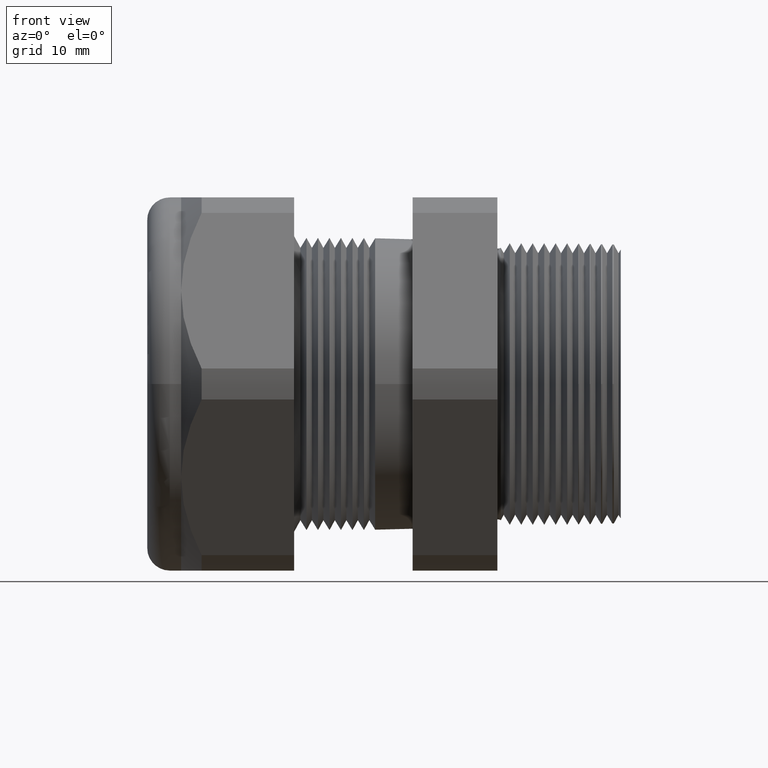
[diagram: clean part render]
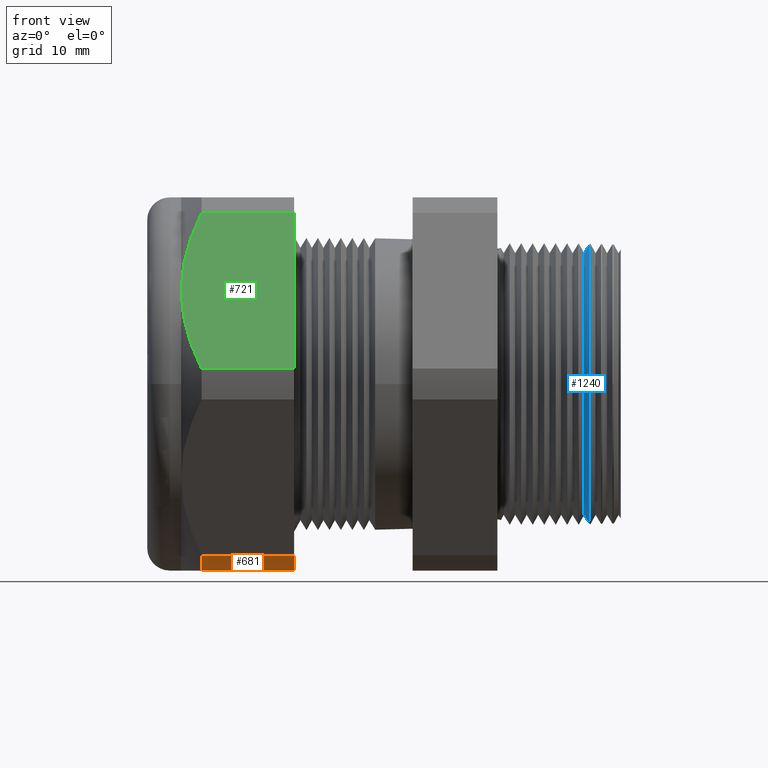
[diagram: same view with three faces highlighted in distinct colors, each labeled with its STEP entity id]
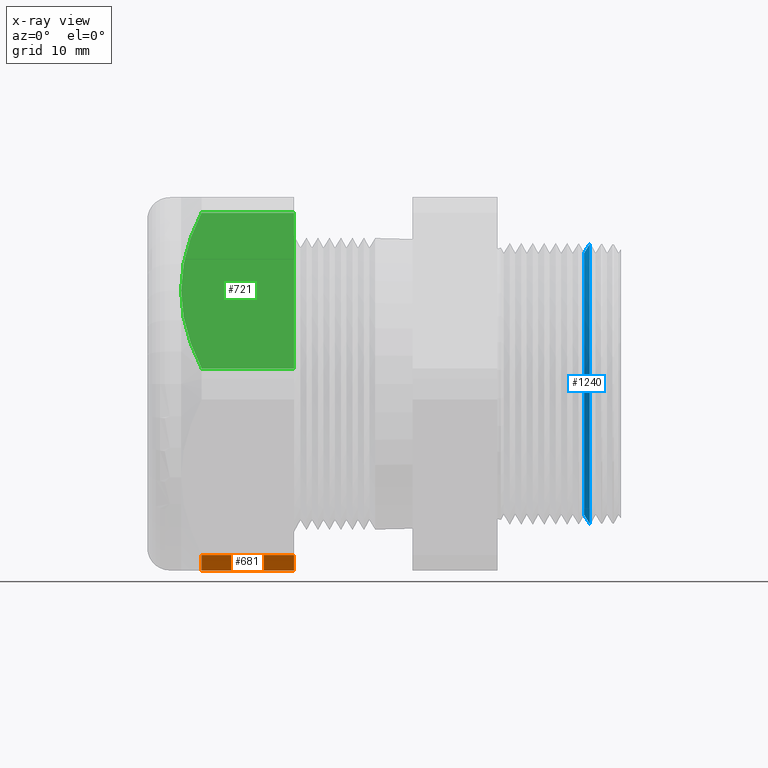
[diagram: x-ray of the same camera — body ghosted, the three highlighted faces saturated]
A machine part, front view with three faces highlighted in distinct colors.
The next image is the same camera in x-ray (body ghosted, the three faces saturated) — at least one of them is partly hidden behind the body in this view.
Their STEP definitions:

[orange] entity #681 — the highlighted cylindrical surface (partial cylindrical patch) has radius 18.3261 mm, axis along (-1, -0, -0).
#681 = ADVANCED_FACE ( 'NONE', ( #2794 ), #2793, .T. ) ;
#682 = EDGE_LOOP ( 'NONE', ( #683, #687, #746, #747 ) ) ;
#683 = ORIENTED_EDGE ( 'NONE', *, *, #684, .T. ) ;
#684 = EDGE_CURVE ( 'NONE', #685, #686, #2788, .T. ) ;
#685 = VERTEX_POINT ( 'NONE', #2784 ) ;
#686 = VERTEX_POINT ( 'NONE', #2783 ) ;
#687 = ORIENTED_EDGE ( 'NONE', *, *, #688, .T. ) ;
#688 = EDGE_CURVE ( 'NONE', #686, #700, #2781, .T. ) ;
#698 = EDGE_CURVE ( 'NONE', #699, #700, #2821, .T. ) ;
#699 = VERTEX_POINT ( 'NONE', #2817 ) ;
#700 = VERTEX_POINT ( 'NONE', #2816 ) ;
#746 = ORIENTED_EDGE ( 'NONE', *, *, #698, .F. ) ;
#747 = ORIENTED_EDGE ( 'NONE', *, *, #748, .F. ) ;
#748 = EDGE_CURVE ( 'NONE', #685, #699, #2893, .T. ) ;
#2777 = DIRECTION ( 'NONE',  ( 0.0000000000000000000, 0.0000000000000000000, -1.000000000000000000 ) ) ;
#2778 = DIRECTION ( 'NONE',  ( 1.000000000000000000, 0.0000000000000000000, 0.0000000000000000000 ) ) ;
#2779 = CARTESIAN_POINT ( 'NONE',  ( -1.340389763779527500, 5.293217369441609100E-017, 0.0000000000000000000 ) ) ;
#2780 = AXIS2_PLACEMENT_3D ( 'NONE', #2779, #2778, #2777 ) ;
#2781 = CIRCLE ( 'NONE', #2780, 0.7215000000000000300 ) ;
#2783 = CARTESIAN_POINT ( 'NONE',  ( -1.340389763779527500, -0.4063420493440883000, -0.5961949252843792300 ) ) ;
#2784 = CARTESIAN_POINT ( 'NONE',  ( -1.018188976377952400, -0.4063420493440883000, -0.5961949252843792300 ) ) ;
#2785 = DIRECTION ( 'NONE',  ( -1.000000000000000000, -0.0000000000000000000, -0.0000000000000000000 ) ) ;
#2786 = VECTOR ( 'NONE', #2785, 39.37007874015748100 ) ;
#2787 = CARTESIAN_POINT ( 'NONE',  ( 0.1200000000000000900, -0.4063420493440883000, -0.5961949252843792300 ) ) ;
#2788 = LINE ( 'NONE', #2787, #2786 ) ;
#2789 = DIRECTION ( 'NONE',  ( 0.0000000000000000000, 0.0000000000000000000, 1.000000000000000000 ) ) ;
#2790 = DIRECTION ( 'NONE',  ( -1.000000000000000000, -0.0000000000000000000, -0.0000000000000000000 ) ) ;
#2791 = CARTESIAN_POINT ( 'NONE',  ( 0.1200000000000000900, 5.293217369441609100E-017, 0.0000000000000000000 ) ) ;
#2792 = AXIS2_PLACEMENT_3D ( 'NONE', #2791, #2790, #2789 ) ;
#2793 = CYLINDRICAL_SURFACE ( 'NONE', #2792, 0.7215000000000000300 ) ;
#2794 = FACE_OUTER_BOUND ( 'NONE', #682, .T. ) ;
#2816 = CARTESIAN_POINT ( 'NONE',  ( -1.340389763779527500, -0.3131489262315936800, -0.6500000000000000200 ) ) ;
#2817 = CARTESIAN_POINT ( 'NONE',  ( -1.018188976377952400, -0.3131489262315936800, -0.6500000000000000200 ) ) ;
#2818 = DIRECTION ( 'NONE',  ( -1.000000000000000000, -0.0000000000000000000, -0.0000000000000000000 ) ) ;
#2819 = VECTOR ( 'NONE', #2818, 39.37007874015748100 ) ;
#2820 = CARTESIAN_POINT ( 'NONE',  ( 0.1200000000000000900, -0.3131489262315936800, -0.6500000000000000200 ) ) ;
#2821 = LINE ( 'NONE', #2820, #2819 ) ;
#2889 = DIRECTION ( 'NONE',  ( 0.0000000000000000000, 1.000000000000000000, 0.0000000000000000000 ) ) ;
#2890 = DIRECTION ( 'NONE',  ( 1.000000000000000000, -3.749030204222210100E-017, -0.0000000000000000000 ) ) ;
#2891 = CARTESIAN_POINT ( 'NONE',  ( -1.018188976377952400, 5.293217369441609100E-017, 0.0000000000000000000 ) ) ;
#2892 = AXIS2_PLACEMENT_3D ( 'NONE', #2891, #2890, #2889 ) ;
#2893 = CIRCLE ( 'NONE', #2892, 0.7215000000000000300 ) ;

[blue] entity #1240 — the highlighted conical surface has half-angle 58.5 deg.
#473 = EDGE_CURVE ( 'NONE', #537, #474, #2395, .T. ) ;
#474 = VERTEX_POINT ( 'NONE', #2387 ) ;
#535 = EDGE_CURVE ( 'NONE', #538, #536, #2468, .T. ) ;
#536 = VERTEX_POINT ( 'NONE', #2464 ) ;
#537 = VERTEX_POINT ( 'NONE', #2463 ) ;
#538 = VERTEX_POINT ( 'NONE', #2462 ) ;
#622 = EDGE_CURVE ( 'NONE', #623, #536, #2673, .T. ) ;
#623 = VERTEX_POINT ( 'NONE', #2668 ) ;
#807 = EDGE_CURVE ( 'NONE', #474, #623, #3010, .T. ) ;
#1236 = EDGE_CURVE ( 'NONE', #538, #537, #3758, .T. ) ;
#1240 = ADVANCED_FACE ( 'NONE', ( #3754 ), #3753, .T. ) ;
#1241 = EDGE_LOOP ( 'NONE', ( #1242, #1243, #1244, #1245, #1246 ) ) ;
#1242 = ORIENTED_EDGE ( 'NONE', *, *, #535, .F. ) ;
#1243 = ORIENTED_EDGE ( 'NONE', *, *, #1236, .T. ) ;
#1244 = ORIENTED_EDGE ( 'NONE', *, *, #473, .T. ) ;
#1245 = ORIENTED_EDGE ( 'NONE', *, *, #807, .T. ) ;
#1246 = ORIENTED_EDGE ( 'NONE', *, *, #622, .T. ) ;
#2387 = CARTESIAN_POINT ( 'NONE',  ( 0.01175006393987942400, -1.049728457182218100E-017, -0.4880300970691989200 ) ) ;
#2388 = DIRECTION ( 'NONE',  ( 0.5224985647159473600, 0.0000000000000000000, -0.8526401643540930700 ) ) ;
#2389 = VECTOR ( 'NONE', #2388, 39.37007874015748100 ) ;
#2390 = CARTESIAN_POINT ( 'NONE',  ( -0.007960980905434294700, -1.049728457182218900E-017, -0.4558645952833023700 ) ) ;
#2395 = LINE ( 'NONE', #2390, #2389 ) ;
#2462 = CARTESIAN_POINT ( 'NONE',  ( -0.007960980905434294700, -1.049728457182218900E-017, 0.4558645952833023700 ) ) ;
#2463 = CARTESIAN_POINT ( 'NONE',  ( -0.007960980905434294700, 4.736006394875138000E-017, -0.4558645952833023700 ) ) ;
#2464 = CARTESIAN_POINT ( 'NONE',  ( 0.01175006393987942400, 4.926916505451445500E-017, 0.4880300970691989200 ) ) ;
#2465 = DIRECTION ( 'NONE',  ( 0.5224985647159473600, 1.044183048100713300E-016, 0.8526401643540930700 ) ) ;
#2466 = VECTOR ( 'NONE', #2465, 39.37007874015748100 ) ;
#2467 = CARTESIAN_POINT ( 'NONE',  ( -0.007960980905434294700, 4.533002717400780000E-017, 0.4558645952833023700 ) ) ;
#2468 = LINE ( 'NONE', #2467, #2466 ) ;
#2668 = CARTESIAN_POINT ( 'NONE',  ( 0.01175006393987942400, -0.4880300970692013100, 0.0000000000000000000 ) ) ;
#2669 = DIRECTION ( 'NONE',  ( 0.0000000000000000000, 0.0000000000000000000, -1.000000000000000000 ) ) ;
#2670 = DIRECTION ( 'NONE',  ( -1.000000000000000000, 0.0000000000000000000, 0.0000000000000000000 ) ) ;
#2671 = CARTESIAN_POINT ( 'NONE',  ( 0.01175006393987942400, -1.707062891447383500E-016, 0.0000000000000000000 ) ) ;
#2672 = AXIS2_PLACEMENT_3D ( 'NONE', #2671, #2670, #2669 ) ;
#2673 = CIRCLE ( 'NONE', #2672, 0.4880300970692010900 ) ;
#3010 = CIRCLE ( 'NONE', #3073, 0.4880300970692010900 ) ;
#3070 = DIRECTION ( 'NONE',  ( 0.0000000000000000000, 0.0000000000000000000, -1.000000000000000000 ) ) ;
#3071 = DIRECTION ( 'NONE',  ( -1.000000000000000000, 0.0000000000000000000, 0.0000000000000000000 ) ) ;
#3072 = CARTESIAN_POINT ( 'NONE',  ( 0.01175006393987942400, -1.707062891447383500E-016, 0.0000000000000000000 ) ) ;
#3073 = AXIS2_PLACEMENT_3D ( 'NONE', #3072, #3071, #3070 ) ;
#3696 = CARTESIAN_POINT ( 'NONE',  ( -0.007960980905434294700, -1.049728457182218900E-017, 0.0000000000000000000 ) ) ;
#3748 = DIRECTION ( 'NONE',  ( 0.0000000000000000000, 0.0000000000000000000, -1.000000000000000000 ) ) ;
#3749 = DIRECTION ( 'NONE',  ( 1.000000000000000000, -0.0000000000000000000, -0.0000000000000000000 ) ) ;
#3750 = CARTESIAN_POINT ( 'NONE',  ( -0.007960980905434294700, -1.049728457182218900E-017, 0.0000000000000000000 ) ) ;
#3751 = AXIS2_PLACEMENT_3D ( 'NONE', #3750, #3749, #3748 ) ;
#3753 = CONICAL_SURFACE ( 'NONE', #3751, 0.4558645952833023700, 1.021017612416684500 ) ;
#3754 = FACE_OUTER_BOUND ( 'NONE', #1241, .T. ) ;
#3755 = DIRECTION ( 'NONE',  ( 0.0000000000000000000, 0.0000000000000000000, -1.000000000000000000 ) ) ;
#3756 = DIRECTION ( 'NONE',  ( 1.000000000000000000, -0.0000000000000000000, -0.0000000000000000000 ) ) ;
#3757 = AXIS2_PLACEMENT_3D ( 'NONE', #3696, #3756, #3755 ) ;
#3758 = CIRCLE ( 'NONE', #3757, 0.4558645952833023700 ) ;

[green] entity #721 — the highlighted planar face has unit normal (0, -0.866, 0.5).
#333 = VERTEX_POINT ( 'NONE', #2111 ) ;
#721 = ADVANCED_FACE ( 'NONE', ( #2882 ), #2881, .T. ) ;
#722 = EDGE_LOOP ( 'NONE', ( #723, #727, #729, #731, #732 ) ) ;
#723 = ORIENTED_EDGE ( 'NONE', *, *, #724, .T. ) ;
#724 = EDGE_CURVE ( 'NONE', #725, #726, #2879, .T. ) ;
#725 = VERTEX_POINT ( 'NONE', #2872 ) ;
#726 = VERTEX_POINT ( 'NONE', #2871 ) ;
#727 = ORIENTED_EDGE ( 'NONE', *, *, #728, .T. ) ;
#728 = EDGE_CURVE ( 'NONE', #726, #333, #2870, .T. ) ;
#729 = ORIENTED_EDGE ( 'NONE', *, *, #730, .T. ) ;
#730 = EDGE_CURVE ( 'NONE', #333, #741, #2869, .T. ) ;
#731 = ORIENTED_EDGE ( 'NONE', *, *, #739, .F. ) ;
#732 = ORIENTED_EDGE ( 'NONE', *, *, #786, .F. ) ;
#739 = EDGE_CURVE ( 'NONE', #740, #741, #2904, .T. ) ;
#740 = VERTEX_POINT ( 'NONE', #2900 ) ;
#741 = VERTEX_POINT ( 'NONE', #2899 ) ;
#786 = EDGE_CURVE ( 'NONE', #725, #740, #2983, .T. ) ;
#2111 = CARTESIAN_POINT ( 'NONE',  ( -1.411889763779527400, -0.5629165124598851700, 0.3249999999999999000 ) ) ;
#2859 = CARTESIAN_POINT ( 'NONE',  ( -1.411889763779527400, -0.5629165124598851700, 0.3249999999999999000 ) ) ;
#2860 = CARTESIAN_POINT ( 'NONE',  ( -1.411889763779527400, -0.5561389602113051600, 0.3367390648454929900 ) ) ;
#2861 = CARTESIAN_POINT ( 'NONE',  ( -1.411460853679630300, -0.5492994181763345400, 0.3485854991505651400 ) ) ;
#2862 = CARTESIAN_POINT ( 'NONE',  ( -1.409757307482530700, -0.5357104722797960700, 0.3721222438646745200 ) ) ;
#2863 = CARTESIAN_POINT ( 'NONE',  ( -1.408488242340942200, -0.5289679975772969600, 0.3838005526181507700 ) ) ;
#2864 = CARTESIAN_POINT ( 'NONE',  ( -1.403504729739888200, -0.5088871528993770300, 0.4185815958592073400 ) ) ;
#2865 = CARTESIAN_POINT ( 'NONE',  ( -1.398613598462209900, -0.4956954080403313500, 0.4414303681955597000 ) ) ;
#2866 = CARTESIAN_POINT ( 'NONE',  ( -1.379883036713412500, -0.4566257321430999800, 0.5091010318848138100 ) ) ;
#2867 = CARTESIAN_POINT ( 'NONE',  ( -1.362011327000795000, -0.4312502584378783400, 0.5530526416083858500 ) ) ;
#2868 = CARTESIAN_POINT ( 'NONE',  ( -1.340389763779527500, -0.4063420493440884600, 0.5961949252843791200 ) ) ;
#2869 = B_SPLINE_CURVE_WITH_KNOTS ( 'NONE', 3,
 ( #2918, #2917, #2916, #2915, #2914, #2913 ),
 .UNSPECIFIED., .F., .F.,
 ( 4, 2, 4 ),
 ( 0.008163776578903780100, 0.01224274182034619900, 0.01632170706178861700 ),
 .UNSPECIFIED. ) ;
#2870 = B_SPLINE_CURVE_WITH_KNOTS ( 'NONE', 3,
 ( #2868, #2867, #2866, #2865, #2864, #2863, #2862, #2861, #2860, #2859 ),
 .UNSPECIFIED., .F., .F.,
 ( 4, 2, 2, 2, 4 ),
 ( 2.483249165352349700E-007, 0.004082012451910155400, 0.006122894515406967400, 0.007143335547155372900, 0.008163776578903780100 ),
 .UNSPECIFIED. ) ;
#2871 = CARTESIAN_POINT ( 'NONE',  ( -1.340389763779527500, -0.4063420493440884600, 0.5961949252843791200 ) ) ;
#2872 = CARTESIAN_POINT ( 'NONE',  ( -1.018188976377952400, -0.4063420493440884600, 0.5961949252843791200 ) ) ;
#2873 = DIRECTION ( 'NONE',  ( -1.000000000000000000, -0.0000000000000000000, -0.0000000000000000000 ) ) ;
#2874 = VECTOR ( 'NONE', #2873, 39.37007874015748100 ) ;
#2875 = CARTESIAN_POINT ( 'NONE',  ( 0.1200000000000000900, -0.4063420493440884600, 0.5961949252843791200 ) ) ;
#2876 = DIRECTION ( 'NONE',  ( 0.0000000000000000000, -0.4999999999999998300, -0.8660254037844388200 ) ) ;
#2877 = DIRECTION ( 'NONE',  ( 0.0000000000000000000, -0.8660254037844388200, 0.4999999999999998300 ) ) ;
#2878 = AXIS2_PLACEMENT_3D ( 'NONE', #2880, #2877, #2876 ) ;
#2879 = LINE ( 'NONE', #2875, #2874 ) ;
#2880 = CARTESIAN_POINT ( 'NONE',  ( 0.1200000000000000900, -0.7194909755756819800, 0.05380507471562046700 ) ) ;
#2881 = PLANE ( 'NONE',  #2878 ) ;
#2882 = FACE_OUTER_BOUND ( 'NONE', #722, .T. ) ;
#2899 = CARTESIAN_POINT ( 'NONE',  ( -1.340389763779527200, -0.7194909755756820900, 0.05380507471562031400 ) ) ;
#2900 = CARTESIAN_POINT ( 'NONE',  ( -1.018188976377952400, -0.7194909755756820900, 0.05380507471562026600 ) ) ;
#2901 = DIRECTION ( 'NONE',  ( -1.000000000000000000, -0.0000000000000000000, -0.0000000000000000000 ) ) ;
#2902 = VECTOR ( 'NONE', #2901, 39.37007874015748100 ) ;
#2903 = CARTESIAN_POINT ( 'NONE',  ( 0.1200000000000000900, -0.7194909755756820900, 0.05380507471562026600 ) ) ;
#2904 = LINE ( 'NONE', #2903, #2902 ) ;
#2913 = CARTESIAN_POINT ( 'NONE',  ( -1.340389763779527200, -0.7194909755756820900, 0.05380507471562031400 ) ) ;
#2914 = CARTESIAN_POINT ( 'NONE',  ( -1.362038095775945000, -0.6945519286446000300, 0.09700077109259909500 ) ) ;
#2915 = CARTESIAN_POINT ( 'NONE',  ( -1.380161853850736500, -0.6687756690813084800, 0.1416465622853034500 ) ) ;
#2916 = CARTESIAN_POINT ( 'NONE',  ( -1.405050007405226100, -0.6165592345672921100, 0.2320880798536729100 ) ) ;
#2917 = CARTESIAN_POINT ( 'NONE',  ( -1.411889763779527600, -0.5900081318517967900, 0.2780759387538905800 ) ) ;
#2918 = CARTESIAN_POINT ( 'NONE',  ( -1.411889763779527400, -0.5629165124598851700, 0.3249999999999999000 ) ) ;
#2980 = DIRECTION ( 'NONE',  ( -1.874515102111104400E-017, -0.4999999999999998300, -0.8660254037844388200 ) ) ;
#2981 = VECTOR ( 'NONE', #2980, 39.37007874015748100 ) ;
#2982 = CARTESIAN_POINT ( 'NONE',  ( -1.018188976377952400, -0.4341665124598851900, 0.5480015414744926500 ) ) ;
#2983 = LINE ( 'NONE', #2982, #2981 ) ;